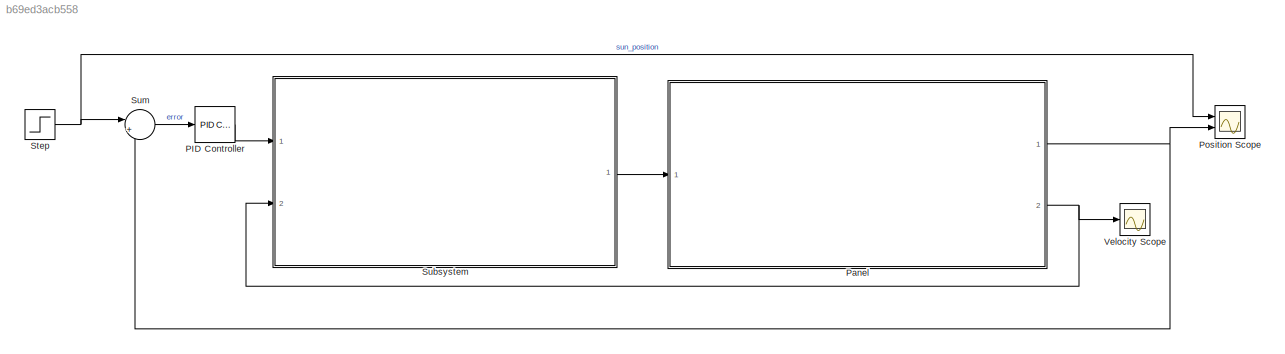
MODEL slx_b69ed3acb558
KIND model
CONFIG AbsTol = auto
CONFIG EnableMultiTasking = off
CONFIG FixedStep = auto
CONFIG MaxStep = auto
CONFIG MinStep = auto
CONFIG RelTol = 1e-3
CONFIG SampleTimeConstraint = Unconstrained
CONFIG SolverName = VariableStepAuto
CONFIG StartTime = 0.0
CONFIG StopTime = 10.0
BLOCK [Reference] PID Controller  REF=pid_lib/PID Controller
  Ports = [1, 1]
  SourceBlock = pid_lib/PID Controller
  SourceProductBaseCode = SL
  SourceType = PID 1dof
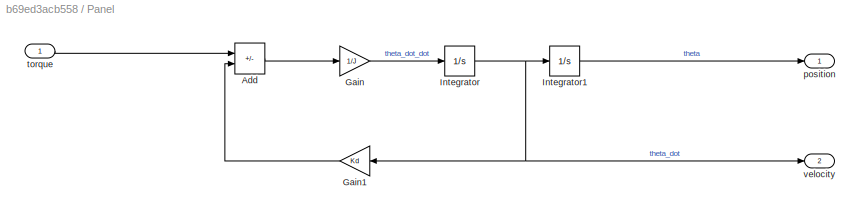
BLOCK [SubSystem] Panel
  Ports = [1, 2]
  RequestExecContextInheritance = off
BLOCK [Sum] Panel/Add
  IconShape = rectangular
  Inputs = +-
  Ports = [2, 1]
BLOCK [Gain] Panel/Gain
  Gain = 1/J
BLOCK [Gain] Panel/Gain1
  Gain = Kd
BLOCK [Integrator] Panel/Integrator
  Ports = [1, 1]
BLOCK [Integrator] Panel/Integrator1
  Ports = [1, 1]
BLOCK [Outport] Panel/position
BLOCK [Inport] Panel/torque
BLOCK [Outport] Panel/velocity
  Port = 2
BLOCK [Scope] Position Scope
  Floating = off
  NumInputPorts = 2
  Ports = [2]
  ScopeSpecificationString = Simulink.scopes.TimeScopeBlockCfg('CurrentConfiguration', extmgr.ConfigurationSet(extmgr.Configuration('Core','General UI',true),extmgr.Configuration('Core','Source UI',true),extmgr.Configuration('Sources','WiredSimulink',true),extmgr.Configuration('Visuals','Time Domain',true,'SerializedDisplays',{struct('MinYLimReal','-0.0089','MaxYLimReal','0.08009','YLabelReal','','MinYLimMag','0.00000','MaxYL...<+1357ch>
BLOCK [Step] Step
  SampleTime = 0
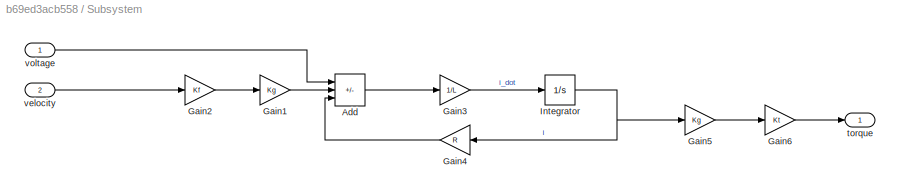
BLOCK [SubSystem] Subsystem
  Ports = [2, 1]
  RequestExecContextInheritance = off
BLOCK [Sum] Subsystem/Add
  IconShape = rectangular
  Inputs = +--
  Ports = [3, 1]
BLOCK [Gain] Subsystem/Gain1
  Gain = Kg
BLOCK [Gain] Subsystem/Gain2
  Gain = Kf
BLOCK [Gain] Subsystem/Gain3
  Gain = 1/L
BLOCK [Gain] Subsystem/Gain4
  Gain = R
BLOCK [Gain] Subsystem/Gain5
  Gain = Kg
BLOCK [Gain] Subsystem/Gain6
  Gain = Kt
BLOCK [Integrator] Subsystem/Integrator
  Ports = [1, 1]
BLOCK [Outport] Subsystem/torque
BLOCK [Inport] Subsystem/velocity
  Port = 2
BLOCK [Inport] Subsystem/voltage
BLOCK [Sum] Sum
  Inputs = |+-
  Ports = [2, 1]
BLOCK [Scope] Velocity Scope
  Floating = off
  NumInputPorts = 1
  Ports = [1]
  ScopeSpecificationString = Simulink.scopes.TimeScopeBlockCfg('CurrentConfiguration', extmgr.ConfigurationSet(extmgr.Configuration('Core','General UI',true),extmgr.Configuration('Core','Source UI',true),extmgr.Configuration('Sources','WiredSimulink',true,'DataLoggingVariableName','ScopeData1'),extmgr.Configuration('Visuals','Time Domain',true,'SerializedDisplays',{struct('MinYLimReal','-0.00089','MaxYLimReal','0.00802','YLab...<+1403ch>
LINE PID Controller:1 -> Subsystem:1
LINE Panel/Add:1 -> Panel/Gain:1
LINE Panel/Gain1:1 -> Panel/Add:2
LINE Panel/Gain:1 -> Panel/Integrator:1
LINE Panel/Integrator1:1 -> Panel/position:1
NET Panel/Integrator:1 -> Panel/Gain1:1, Panel/Integrator1:1, Panel/velocity:1
LINE Panel/torque:1 -> Panel/Add:1
NET Panel:1 -> Position Scope:2, Sum:2
NET Panel:2 -> Subsystem:2, Velocity Scope:1
NET Step:1 -> Position Scope:1, Sum:1
LINE Subsystem/Add:1 -> Subsystem/Gain3:1
LINE Subsystem/Gain1:1 -> Subsystem/Add:2
LINE Subsystem/Gain2:1 -> Subsystem/Gain1:1
LINE Subsystem/Gain3:1 -> Subsystem/Integrator:1
LINE Subsystem/Gain4:1 -> Subsystem/Add:3
LINE Subsystem/Gain5:1 -> Subsystem/Gain6:1
LINE Subsystem/Gain6:1 -> Subsystem/torque:1
NET Subsystem/Integrator:1 -> Subsystem/Gain4:1, Subsystem/Gain5:1
LINE Subsystem/velocity:1 -> Subsystem/Gain2:1
LINE Subsystem/voltage:1 -> Subsystem/Add:1
LINE Subsystem:1 -> Panel:1
LINE Sum:1 -> PID Controller:1
note: NET lines group one-source signal fan-out (src -> all destinations, sorted); 1:1 wires keep LINE
